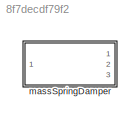
MODEL slx_8f7decdf79f2
KIND library
CONFIG AbsTol = auto
CONFIG EnableMultiTasking = off
CONFIG FixedStep = auto
CONFIG MaxStep = auto
CONFIG MinStep = auto
CONFIG RelTol = 1e-3
CONFIG SampleTimeConstraint = Unconstrained
CONFIG SolverName = VariableStepAuto
CONFIG StartTime = 0.0
CONFIG StopTime = 10.0
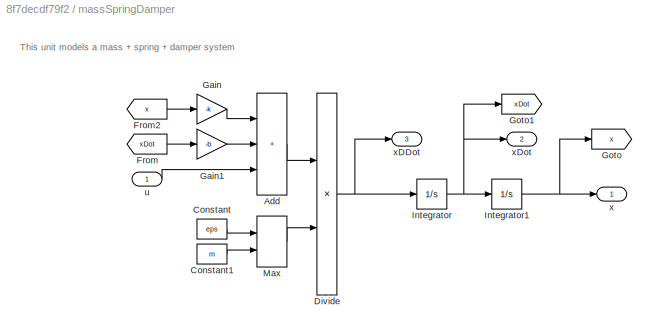
BLOCK [SubSystem] massSpringDamper
  Ports = [1, 3]
  RequestExecContextInheritance = off
BLOCK [Sum] massSpringDamper/Add
  IconShape = rectangular
  Inputs = +++
  Ports = [3, 1]
BLOCK [Constant] massSpringDamper/Constant
  Value = eps
BLOCK [Constant] massSpringDamper/Constant1
  Value = m
BLOCK [Product] massSpringDamper/Divide
  Inputs = */
  Ports = [2, 1]
BLOCK [From] massSpringDamper/From
  GotoTag = xDot
BLOCK [From] massSpringDamper/From2
  GotoTag = x
BLOCK [Gain] massSpringDamper/Gain
  Gain = -k
BLOCK [Gain] massSpringDamper/Gain1
  Gain = -b
BLOCK [Goto] massSpringDamper/Goto
  GotoTag = x
BLOCK [Goto] massSpringDamper/Goto1
  GotoTag = xDot
BLOCK [Integrator] massSpringDamper/Integrator
  InitialCondition = xDot0
  Ports = [1, 1]
BLOCK [Integrator] massSpringDamper/Integrator1
  InitialCondition = x0
  Ports = [1, 1]
BLOCK [MinMax] massSpringDamper/Max
  Function = max
  Inputs = 2
  Ports = [2, 1]
BLOCK [Inport] massSpringDamper/u
BLOCK [Outport] massSpringDamper/x
  VectorParamsAs1DForOutWhenUnconnected = off
BLOCK [Outport] massSpringDamper/xDDot
  Port = 3
  VectorParamsAs1DForOutWhenUnconnected = off
BLOCK [Outport] massSpringDamper/xDot
  Port = 2
  VectorParamsAs1DForOutWhenUnconnected = off
ANNOTATION massSpringDamper: This unit models a mass + spring + damper system
LINE massSpringDamper/Add:1 -> massSpringDamper/Divide:1
LINE massSpringDamper/Constant1:1 -> massSpringDamper/Max:2
LINE massSpringDamper/Constant:1 -> massSpringDamper/Max:1
NET massSpringDamper/Divide:1 -> massSpringDamper/Integrator:1, massSpringDamper/xDDot:1
LINE massSpringDamper/From2:1 -> massSpringDamper/Gain:1
LINE massSpringDamper/From:1 -> massSpringDamper/Gain1:1
LINE massSpringDamper/Gain1:1 -> massSpringDamper/Add:2
LINE massSpringDamper/Gain:1 -> massSpringDamper/Add:1
NET massSpringDamper/Integrator1:1 -> massSpringDamper/Goto:1, massSpringDamper/x:1
NET massSpringDamper/Integrator:1 -> massSpringDamper/Goto1:1, massSpringDamper/Integrator1:1, massSpringDamper/xDot:1
LINE massSpringDamper/Max:1 -> massSpringDamper/Divide:2
LINE massSpringDamper/u:1 -> massSpringDamper/Add:3
note: NET lines group one-source signal fan-out (src -> all destinations, sorted); 1:1 wires keep LINE
